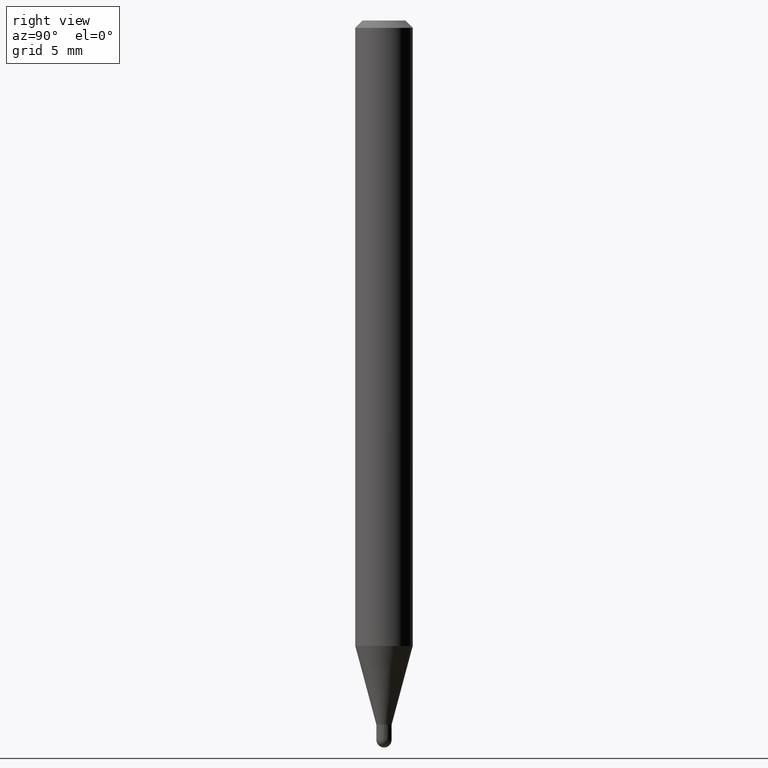
[diagram: clean part render]
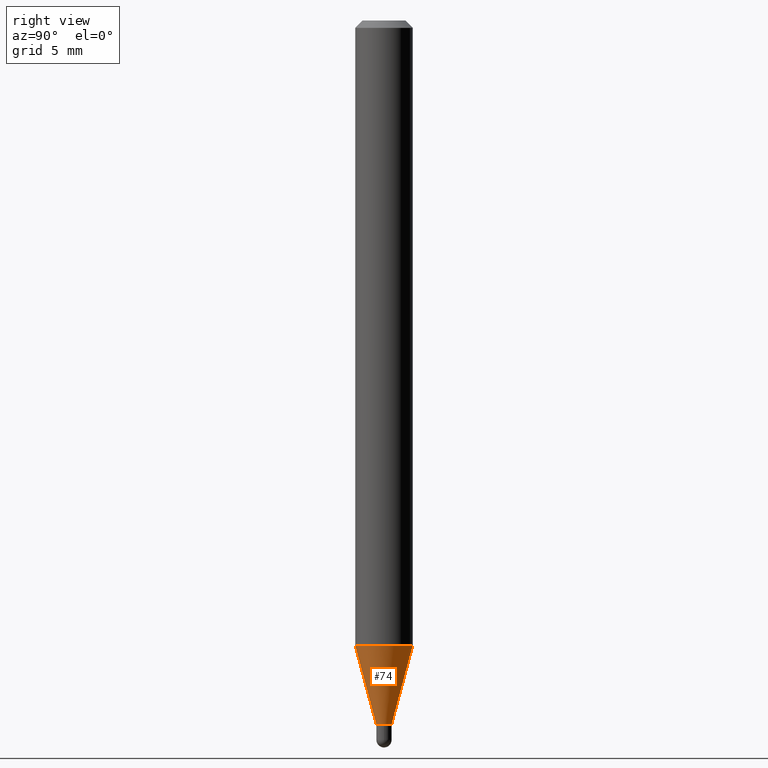
[diagram: same view with one face highlighted and labeled with its STEP entity id]
A machine part, right view. The second image highlights one B-rep face of the part: STEP entity #74.
In plain terms, the highlighted conical surface has half-angle 15 deg.
Its self-contained STEP definition (entity closure, byte-faithful):
#9 = CIRCLE ( 'NONE', #324, 0.05904999999999999832 ) ;
#14 = CONICAL_SURFACE ( 'NONE', #484, 0.01574999999999964970, 0.2617993877991573459 ) ;
#23 = VECTOR ( 'NONE', #201, 39.37007874015748143 ) ;
#52 = EDGE_CURVE ( 'NONE', #230, #225, #331, .T. ) ;
#70 = ORIENTED_EDGE ( 'NONE', *, *, #257, .T. ) ;
#74 = ADVANCED_FACE ( 'NONE', ( #310 ), #14, .T. ) ;
#81 = DIRECTION ( 'NONE',  ( -6.982962677686265133E-15, -1.000000000000000000, 0.000000000000000000 ) ) ;
#83 = DIRECTION ( 'NONE',  ( -2.445444728343672060E-29, 3.491515819682548515E-15, 1.000000000000000000 ) ) ;
#117 = AXIS2_PLACEMENT_3D ( 'NONE', #308, #83, #338 ) ;
#118 = CARTESIAN_POINT ( 'NONE',  ( 1.119104808822486904E-16, 0.01574999999999459124, -1.448899999999999855 ) ) ;
#131 = DIRECTION ( 'NONE',  ( -6.982962677686265922E-15, -1.000000000000000000, 4.626330217890369336E-15 ) ) ;
#138 = LINE ( 'NONE', #118, #23 ) ;
#142 = VERTEX_POINT ( 'NONE', #468 ) ;
#148 = VERTEX_POINT ( 'NONE', #156 ) ;
#156 = CARTESIAN_POINT ( 'NONE',  ( 4.195754854663704558E-16, 0.05904999999999550192, -1.287302200032271582 ) ) ;
#173 = EDGE_CURVE ( 'NONE', #230, #142, #291, .T. ) ;
#201 = DIRECTION ( 'NONE',  ( 1.839019923739648830E-15, 0.2588190451025317862, 0.9659258262890653146 ) ) ;
#225 = VERTEX_POINT ( 'NONE', #285 ) ;
#230 = VERTEX_POINT ( 'NONE', #318 ) ;
#257 = EDGE_CURVE ( 'NONE', #142, #148, #138, .T. ) ;
#285 = CARTESIAN_POINT ( 'NONE',  ( -4.123439461173426755E-16, -0.05905000000000450860, -1.287302200032271138 ) ) ;
#291 = CIRCLE ( 'NONE', #117, 0.01574999999999964970 ) ;
#308 = CARTESIAN_POINT ( 'NONE',  ( 3.543204866897145919E-29, -5.058857271138045478E-15, -1.448899999999999855 ) ) ;
#310 = FACE_OUTER_BOUND ( 'NONE', #333, .T. ) ;
#318 = CARTESIAN_POINT ( 'NONE',  ( -1.099816621735208038E-16, -0.01575000000000470468, -1.448899999999999855 ) ) ;
#324 = AXIS2_PLACEMENT_3D ( 'NONE', #357, #472, #131 ) ;
#327 = DIRECTION ( 'NONE',  ( -1.807323732225377865E-15, -0.2588190451025250138, 0.9659258262890670910 ) ) ;
#331 = LINE ( 'NONE', #361, #399 ) ;
#333 = EDGE_LOOP ( 'NONE', ( #437, #70, #492, #431 ) ) ;
#338 = DIRECTION ( 'NONE',  ( -6.982962677686265133E-15, -1.000000000000000000, 0.000000000000000000 ) ) ;
#357 = CARTESIAN_POINT ( 'NONE',  ( 3.148026378854129597E-29, -4.494635996124823289E-15, -1.287302200032271360 ) ) ;
#361 = CARTESIAN_POINT ( 'NONE',  ( -1.099816621735208038E-16, -0.01575000000000470468, -1.448899999999999855 ) ) ;
#399 = VECTOR ( 'NONE', #327, 39.37007874015748854 ) ;
#431 = ORIENTED_EDGE ( 'NONE', *, *, #52, .F. ) ;
#436 = EDGE_CURVE ( 'NONE', #225, #148, #9, .T. ) ;
#437 = ORIENTED_EDGE ( 'NONE', *, *, #173, .T. ) ;
#463 = DIRECTION ( 'NONE',  ( -2.445444728343672060E-29, 3.491515819682548515E-15, 1.000000000000000000 ) ) ;
#468 = CARTESIAN_POINT ( 'NONE',  ( 2.657429831743097333E-16, 0.01574999999999459124, -1.448899999999999855 ) ) ;
#472 = DIRECTION ( 'NONE',  ( -2.445444728343672060E-29, 3.491515819682548515E-15, 1.000000000000000000 ) ) ;
#484 = AXIS2_PLACEMENT_3D ( 'NONE', #509, #463, #81 ) ;
#492 = ORIENTED_EDGE ( 'NONE', *, *, #436, .F. ) ;
#509 = CARTESIAN_POINT ( 'NONE',  ( 3.543204866897145919E-29, -5.058857271138045478E-15, -1.448899999999999855 ) ) ;